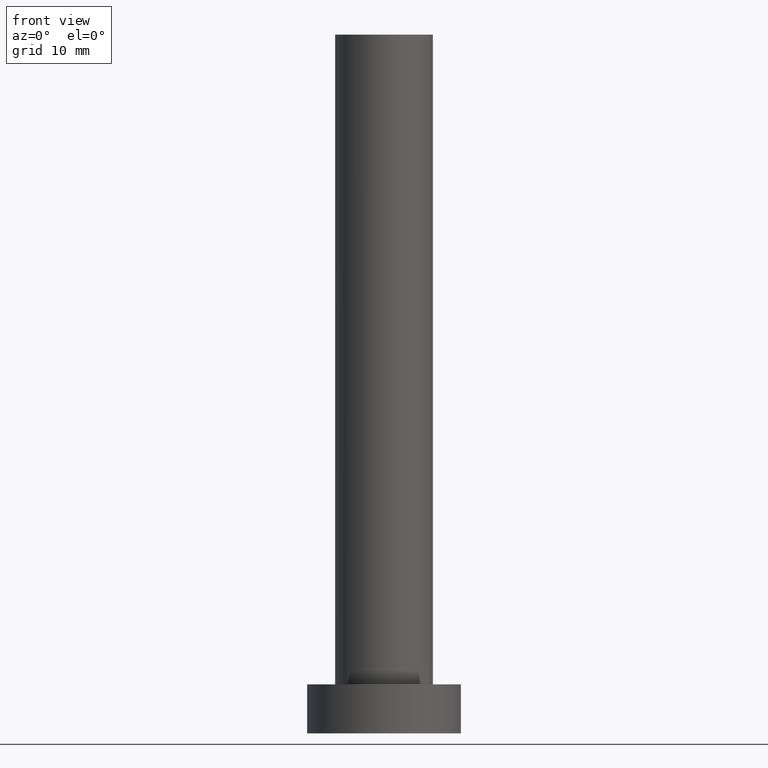
[diagram: clean part render]
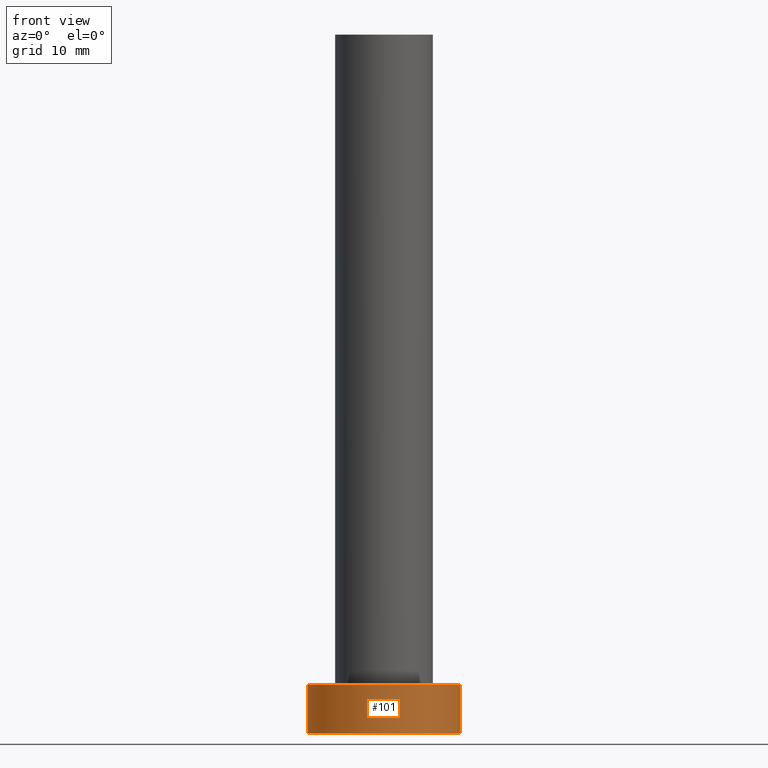
[diagram: same view with one face highlighted and labeled with its STEP entity id]
A machine part, front view. The second image highlights one B-rep face of the part: STEP entity #101.
In plain terms, the highlighted cylindrical surface (partial cylindrical patch) has radius 11 mm, axis along (-0, -0, -1).
Its self-contained STEP definition (entity closure, byte-faithful):
#3 = ORIENTED_EDGE ( 'NONE', *, *, #239, .F. ) ;
#9 = CARTESIAN_POINT ( 'NONE',  ( -11.00000000000000000, 0.000000000000000000, 0.000000000000000000 ) ) ;
#10 = CARTESIAN_POINT ( 'NONE',  ( 0.000000000000000000, 0.000000000000000000, 0.000000000000000000 ) ) ;
#13 = DIRECTION ( 'NONE',  ( -0.000000000000000000, -0.000000000000000000, -1.000000000000000000 ) ) ;
#15 = CARTESIAN_POINT ( 'NONE',  ( 11.00000000000000000, 1.347111479062088405E-15, 7.000000000000000000 ) ) ;
#35 = AXIS2_PLACEMENT_3D ( 'NONE', #10, #36, #189 ) ;
#36 = DIRECTION ( 'NONE',  ( 0.000000000000000000, 0.000000000000000000, 1.000000000000000000 ) ) ;
#43 = ORIENTED_EDGE ( 'NONE', *, *, #197, .T. ) ;
#47 = DIRECTION ( 'NONE',  ( -1.000000000000000000, 0.000000000000000000, 0.000000000000000000 ) ) ;
#60 = CARTESIAN_POINT ( 'NONE',  ( 0.000000000000000000, 0.000000000000000000, 7.000000000000000000 ) ) ;
#68 = AXIS2_PLACEMENT_3D ( 'NONE', #86, #162, #247 ) ;
#76 = VERTEX_POINT ( 'NONE', #206 ) ;
#79 = FACE_OUTER_BOUND ( 'NONE', #95, .T. ) ;
#82 = CIRCLE ( 'NONE', #35, 11.00000000000000000 ) ;
#86 = CARTESIAN_POINT ( 'NONE',  ( 0.000000000000000000, 0.000000000000000000, 7.000000000000000000 ) ) ;
#95 = EDGE_LOOP ( 'NONE', ( #3, #223, #43, #220 ) ) ;
#101 = ADVANCED_FACE ( 'NONE', ( #79 ), #156, .T. ) ;
#116 = CIRCLE ( 'NONE', #68, 11.00000000000000000 ) ;
#133 = LINE ( 'NONE', #228, #217 ) ;
#141 = DIRECTION ( 'NONE',  ( -0.000000000000000000, -0.000000000000000000, -1.000000000000000000 ) ) ;
#146 = LINE ( 'NONE', #15, #201 ) ;
#149 = DIRECTION ( 'NONE',  ( -0.000000000000000000, -0.000000000000000000, -1.000000000000000000 ) ) ;
#156 = CYLINDRICAL_SURFACE ( 'NONE', #224, 11.00000000000000000 ) ;
#162 = DIRECTION ( 'NONE',  ( 0.000000000000000000, 0.000000000000000000, 1.000000000000000000 ) ) ;
#164 = CARTESIAN_POINT ( 'NONE',  ( 11.00000000000000000, 1.347111479062088405E-15, 0.000000000000000000 ) ) ;
#176 = VERTEX_POINT ( 'NONE', #9 ) ;
#189 = DIRECTION ( 'NONE',  ( 1.000000000000000000, 0.000000000000000000, 0.000000000000000000 ) ) ;
#197 = EDGE_CURVE ( 'NONE', #232, #176, #133, .T. ) ;
#200 = VERTEX_POINT ( 'NONE', #164 ) ;
#201 = VECTOR ( 'NONE', #149, 1000.000000000000000 ) ;
#206 = CARTESIAN_POINT ( 'NONE',  ( 11.00000000000000000, 1.347111479062088405E-15, 7.000000000000000000 ) ) ;
#211 = EDGE_CURVE ( 'NONE', #176, #200, #82, .T. ) ;
#217 = VECTOR ( 'NONE', #13, 1000.000000000000000 ) ;
#219 = EDGE_CURVE ( 'NONE', #232, #76, #116, .T. ) ;
#220 = ORIENTED_EDGE ( 'NONE', *, *, #211, .T. ) ;
#223 = ORIENTED_EDGE ( 'NONE', *, *, #219, .F. ) ;
#224 = AXIS2_PLACEMENT_3D ( 'NONE', #60, #141, #47 ) ;
#228 = CARTESIAN_POINT ( 'NONE',  ( -11.00000000000000000, 0.000000000000000000, 7.000000000000000000 ) ) ;
#232 = VERTEX_POINT ( 'NONE', #245 ) ;
#239 = EDGE_CURVE ( 'NONE', #76, #200, #146, .T. ) ;
#245 = CARTESIAN_POINT ( 'NONE',  ( -11.00000000000000000, 0.000000000000000000, 7.000000000000000000 ) ) ;
#247 = DIRECTION ( 'NONE',  ( 1.000000000000000000, 0.000000000000000000, 0.000000000000000000 ) ) ;